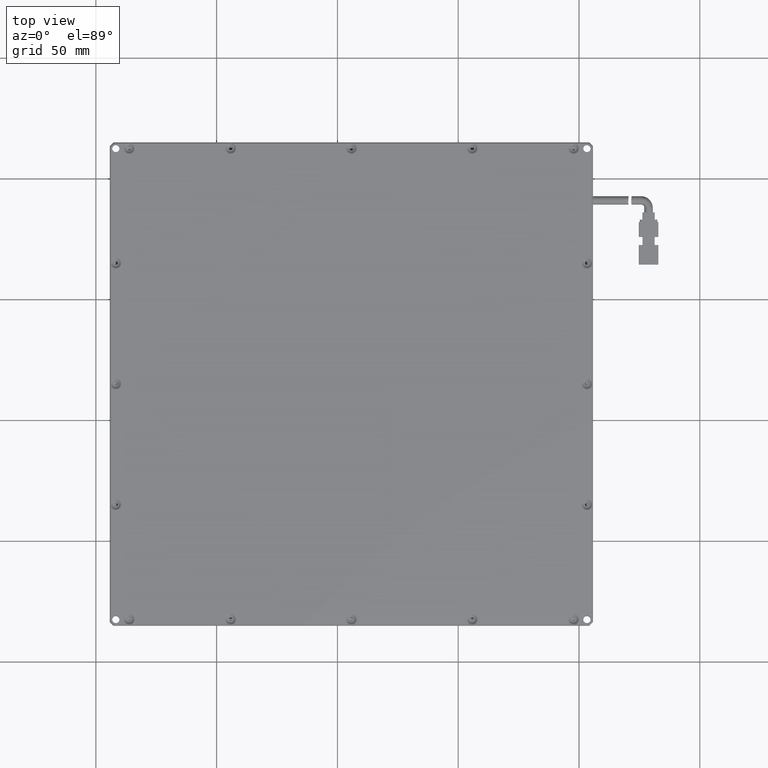
[diagram: clean part render]
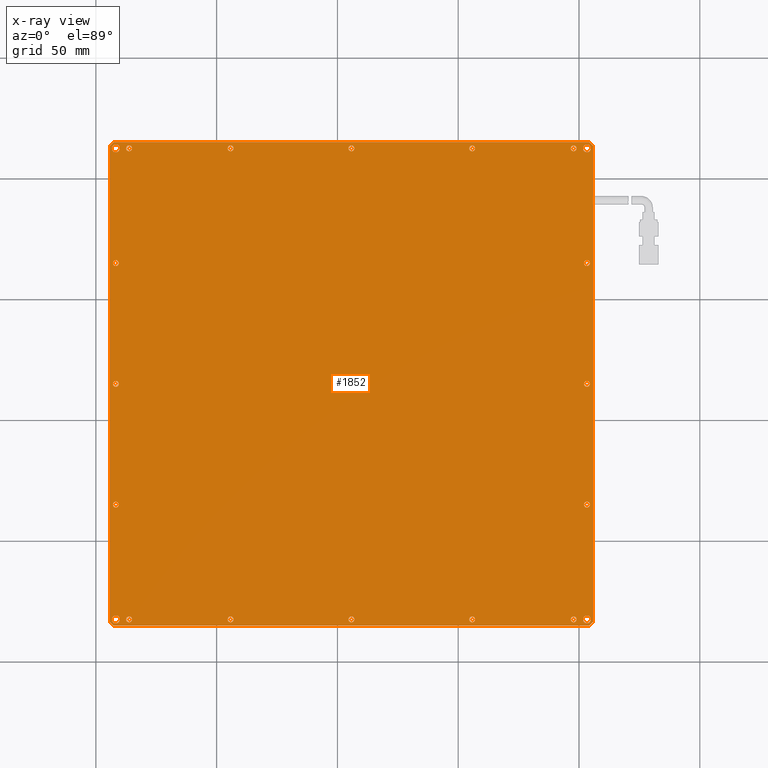
[diagram: x-ray — body ghosted, one internal face saturated and labeled with its STEP entity id]
A machine part, top view, then the same camera in x-ray: the body is ghosted and one INTERNAL B-rep face — a face not visible from any outside direction — is saturated and labeled: STEP entity #1852.
In plain terms, the highlighted planar face has unit normal (0, 0, -1).
Its self-contained STEP definition (entity closure, byte-faithful):
#141 = EDGE_CURVE ( 'NONE', #25293, #31056, #6409, .T. ) ;
#173 = VERTEX_POINT ( 'NONE', #12850 ) ;
#178 = FACE_OUTER_BOUND ( 'NONE', #16864, .T. ) ;
#204 = CARTESIAN_POINT ( 'NONE',  ( 53.28104460093896200, 14.95082159624412700, 4.499999999999999100 ) ) ;
#214 = CARTESIAN_POINT ( 'NONE',  ( 55.78104460093896900, -83.54917840375581800, 4.499999999999999100 ) ) ;
#287 = EDGE_LOOP ( 'NONE', ( #20049, #13171 ) ) ;
#315 = VERTEX_POINT ( 'NONE', #29815 ) ;
#357 = ORIENTED_EDGE ( 'NONE', *, *, #9085, .T. ) ;
#389 = DIRECTION ( 'NONE',  ( 1.000000000000000000, 0.0000000000000000000, 0.0000000000000000000 ) ) ;
#477 = VERTEX_POINT ( 'NONE', #25427 ) ;
#492 = AXIS2_PLACEMENT_3D ( 'NONE', #22128, #7352, #24605 ) ;
#576 = EDGE_CURVE ( 'NONE', #24073, #30542, #11399, .T. ) ;
#827 = DIRECTION ( 'NONE',  ( -0.0000000000000000000, -0.0000000000000000000, 1.000000000000000000 ) ) ;
#840 = EDGE_CURVE ( 'NONE', #16230, #16880, #1385, .T. ) ;
#909 = AXIS2_PLACEMENT_3D ( 'NONE', #21521, #6723, #23988 ) ;
#934 = EDGE_CURVE ( 'NONE', #16496, #11322, #996, .T. ) ;
#938 = EDGE_LOOP ( 'NONE', ( #28427, #23035 ) ) ;
#960 = FACE_BOUND ( 'NONE', #27112, .T. ) ;
#996 = CIRCLE ( 'NONE', #3240, 1.200000000000006600 ) ;
#1045 = CIRCLE ( 'NONE', #23787, 1.200000000000006600 ) ;
#1047 = EDGE_CURVE ( 'NONE', #4254, #17676, #2510, .T. ) ;
#1150 = AXIS2_PLACEMENT_3D ( 'NONE', #10073, #27298, #12517 ) ;
#1156 = DIRECTION ( 'NONE',  ( 1.000000000000000000, 0.0000000000000000000, 0.0000000000000000000 ) ) ;
#1251 = ORIENTED_EDGE ( 'NONE', *, *, #141, .T. ) ;
#1320 = CARTESIAN_POINT ( 'NONE',  ( -144.2189553990610300, -83.54917840375587400, 4.499999999999998200 ) ) ;
#1385 = LINE ( 'NONE', #27368, #12949 ) ;
#1394 = DIRECTION ( 'NONE',  ( -0.0000000000000000000, -0.0000000000000000000, 1.000000000000000000 ) ) ;
#1513 = DIRECTION ( 'NONE',  ( 1.000000000000000000, 0.0000000000000000000, 0.0000000000000000000 ) ) ;
#1562 = CARTESIAN_POINT ( 'NONE',  ( 5.781044600938978200, 112.4508215962441300, 4.499999999999999100 ) ) ;
#1595 = DIRECTION ( 'NONE',  ( 0.0000000000000000000, 1.000000000000000000, 0.0000000000000000000 ) ) ;
#1635 = DIRECTION ( 'NONE',  ( 1.000000000000000000, 0.0000000000000000000, 0.0000000000000000000 ) ) ;
#1639 = AXIS2_PLACEMENT_3D ( 'NONE', #17246, #2468, #19737 ) ;
#1719 = CARTESIAN_POINT ( 'NONE',  ( -93.01895539906101400, -82.54917840375587400, 4.499999999999999100 ) ) ;
#1720 = FACE_BOUND ( 'NONE', #20125, .T. ) ;
#1834 = DIRECTION ( 'NONE',  ( 1.000000000000000000, 0.0000000000000000000, 0.0000000000000000000 ) ) ;
#1841 = ORIENTED_EDGE ( 'NONE', *, *, #11326, .T. ) ;
#1852 = ADVANCED_FACE ( 'NONE', ( #15622, #28714, #22149, #9026, #2497, #27924, #21366, #14835, #8265, #1720, #27178, #20632, #14054, #7482, #960, #26378, #19866, #13282, #6679, #178, #25590 ), #17147, .T. ) ;
#1920 = DIRECTION ( 'NONE',  ( 1.000000000000000000, 0.0000000000000000000, 0.0000000000000000000 ) ) ;
#2129 = CARTESIAN_POINT ( 'NONE',  ( 4.581044600938971800, 112.4508215962441300, 4.499999999999999100 ) ) ;
#2216 = CARTESIAN_POINT ( 'NONE',  ( 48.98104460093896500, -82.54917840375587400, 4.499999999999999100 ) ) ;
#2219 = CARTESIAN_POINT ( 'NONE',  ( -140.0689553990610500, 112.4508215962441300, 4.499999999999999100 ) ) ;
#2299 = AXIS2_PLACEMENT_3D ( 'NONE', #10508, #27731, #12972 ) ;
#2335 = CIRCLE ( 'NONE', #909, 1.199999999999978900 ) ;
#2371 = CARTESIAN_POINT ( 'NONE',  ( 47.78104460093896200, -82.54917840375587400, 4.499999999999999100 ) ) ;
#2393 = CARTESIAN_POINT ( 'NONE',  ( -136.2189553990610300, -82.54917840375587400, 4.499999999999999100 ) ) ;
#2414 = AXIS2_PLACEMENT_3D ( 'NONE', #27165, #12365, #29667 ) ;
#2468 = DIRECTION ( 'NONE',  ( 0.0000000000000000000, 0.0000000000000000000, -1.000000000000000000 ) ) ;
#2469 = EDGE_LOOP ( 'NONE', ( #9784, #23932 ) ) ;
#2497 = FACE_BOUND ( 'NONE', #9227, .T. ) ;
#2510 = CIRCLE ( 'NONE', #12520, 1.200000000000006600 ) ;
#2525 = AXIS2_PLACEMENT_3D ( 'NONE', #14606, #31882, #17114 ) ;
#2581 = CARTESIAN_POINT ( 'NONE',  ( 53.28104460093896200, 14.95082159624412700, 4.499999999999999100 ) ) ;
#2667 = DIRECTION ( 'NONE',  ( 1.000000000000000000, 0.0000000000000000000, 0.0000000000000000000 ) ) ;
#2694 = AXIS2_PLACEMENT_3D ( 'NONE', #8904, #26148, #11368 ) ;
#2716 = CIRCLE ( 'NONE', #13802, 1.200000000000006600 ) ;
#2793 = ORIENTED_EDGE ( 'NONE', *, *, #28502, .T. ) ;
#2806 = AXIS2_PLACEMENT_3D ( 'NONE', #9263, #26505, #11730 ) ;
#2976 = ORIENTED_EDGE ( 'NONE', *, *, #16670, .T. ) ;
#2978 = CIRCLE ( 'NONE', #30604, 1.200000000000006600 ) ;
#3100 = AXIS2_PLACEMENT_3D ( 'NONE', #21688, #6901, #24164 ) ;
#3240 = AXIS2_PLACEMENT_3D ( 'NONE', #27272, #12493, #29783 ) ;
#3282 = AXIS2_PLACEMENT_3D ( 'NONE', #15590, #827, #18065 ) ;
#3347 = CARTESIAN_POINT ( 'NONE',  ( -141.7189553990610300, 14.95082159624412700, 4.499999999999999100 ) ) ;
#3372 = AXIS2_PLACEMENT_3D ( 'NONE', #28015, #13270, #30562 ) ;
#3390 = EDGE_CURVE ( 'NONE', #23383, #26429, #16346, .T. ) ;
#3705 = AXIS2_PLACEMENT_3D ( 'NONE', #31384, #16614, #1834 ) ;
#3855 = CARTESIAN_POINT ( 'NONE',  ( 5.781044600938978200, -82.54917840375587400, 4.499999999999999100 ) ) ;
#3923 = EDGE_CURVE ( 'NONE', #23568, #30537, #11375, .T. ) ;
#3957 = CIRCLE ( 'NONE', #3372, 1.199999999999978900 ) ;
#4051 = DIRECTION ( 'NONE',  ( 1.000000000000000000, 0.0000000000000000000, 0.0000000000000000000 ) ) ;
#4152 = CARTESIAN_POINT ( 'NONE',  ( -137.4189553990610500, -82.54917840375587400, 4.499999999999999100 ) ) ;
#4253 = CARTESIAN_POINT ( 'NONE',  ( 52.08104460093895900, 14.95082159624412700, 4.499999999999999100 ) ) ;
#4254 = VERTEX_POINT ( 'NONE', #17498 ) ;
#4285 = ORIENTED_EDGE ( 'NONE', *, *, #23219, .T. ) ;
#4331 = ORIENTED_EDGE ( 'NONE', *, *, #21129, .T. ) ;
#4572 = EDGE_LOOP ( 'NONE', ( #21194, #7036 ) ) ;
#4801 = LINE ( 'NONE', #23755, #5573 ) ;
#4828 = DIRECTION ( 'NONE',  ( 1.000000000000000000, 0.0000000000000000000, 0.0000000000000000000 ) ) ;
#4849 = DIRECTION ( 'NONE',  ( 1.000000000000000000, 0.0000000000000000000, 0.0000000000000000000 ) ) ;
#4980 = EDGE_CURVE ( 'NONE', #31342, #23534, #10493, .T. ) ;
#5049 = DIRECTION ( 'NONE',  ( 1.000000000000000000, 0.0000000000000000000, 0.0000000000000000000 ) ) ;
#5054 = VERTEX_POINT ( 'NONE', #15004 ) ;
#5092 = CARTESIAN_POINT ( 'NONE',  ( -141.7189553990610300, 14.95082159624412700, 4.499999999999999100 ) ) ;
#5239 = CARTESIAN_POINT ( 'NONE',  ( 53.28104460093896200, -82.54917840375587400, 4.499999999999999100 ) ) ;
#5255 = DIRECTION ( 'NONE',  ( -0.0000000000000000000, -1.000000000000000000, -0.0000000000000000000 ) ) ;
#5293 = CIRCLE ( 'NONE', #31954, 1.199999999999992600 ) ;
#5311 = CARTESIAN_POINT ( 'NONE',  ( -94.21895539906103100, 112.4508215962441300, 4.499999999999999100 ) ) ;
#5340 = EDGE_CURVE ( 'NONE', #10936, #9612, #23192, .T. ) ;
#5501 = CARTESIAN_POINT ( 'NONE',  ( 53.28104460093896200, -82.54917840375587400, 4.499999999999999100 ) ) ;
#5573 = VECTOR ( 'NONE', #16447, 1000.000000000000000 ) ;
#5622 = LINE ( 'NONE', #214, #29587 ) ;
#5683 = ORIENTED_EDGE ( 'NONE', *, *, #31746, .T. ) ;
#5716 = EDGE_LOOP ( 'NONE', ( #14203, #31065 ) ) ;
#5734 = DIRECTION ( 'NONE',  ( -0.0000000000000000000, -0.0000000000000000000, 1.000000000000000000 ) ) ;
#5792 = DIRECTION ( 'NONE',  ( 0.7071067811865474600, 0.7071067811865474600, 0.0000000000000000000 ) ) ;
#5796 = DIRECTION ( 'NONE',  ( 1.000000000000000000, 0.0000000000000000000, 0.0000000000000000000 ) ) ;
#5924 = CARTESIAN_POINT ( 'NONE',  ( -142.7189553990610300, -85.04917840375587400, 4.499999999999999100 ) ) ;
#5953 = VERTEX_POINT ( 'NONE', #2219 ) ;
#6001 = CARTESIAN_POINT ( 'NONE',  ( 51.63104460093897800, 112.4508215962441300, 4.499999999999999100 ) ) ;
#6020 = EDGE_LOOP ( 'NONE', ( #7828, #25206 ) ) ;
#6087 = DIRECTION ( 'NONE',  ( -0.0000000000000000000, -0.0000000000000000000, 1.000000000000000000 ) ) ;
#6121 = EDGE_LOOP ( 'NONE', ( #17235, #8554 ) ) ;
#6292 = DIRECTION ( 'NONE',  ( 1.000000000000000000, 0.0000000000000000000, 0.0000000000000000000 ) ) ;
#6318 = CIRCLE ( 'NONE', #6476, 1.649999999999984800 ) ;
#6341 = VERTEX_POINT ( 'NONE', #28628 ) ;
#6409 = CIRCLE ( 'NONE', #21772, 1.649999999999984800 ) ;
#6433 = EDGE_LOOP ( 'NONE', ( #357, #27429 ) ) ;
#6476 = AXIS2_PLACEMENT_3D ( 'NONE', #13806, #31084, #16280 ) ;
#6640 = EDGE_LOOP ( 'NONE', ( #1251, #4285 ) ) ;
#6679 = FACE_BOUND ( 'NONE', #4572, .T. ) ;
#6723 = DIRECTION ( 'NONE',  ( -0.0000000000000000000, -0.0000000000000000000, 1.000000000000000000 ) ) ;
#6780 = DIRECTION ( 'NONE',  ( 1.000000000000000000, 0.0000000000000000000, 0.0000000000000000000 ) ) ;
#6889 = DIRECTION ( 'NONE',  ( -0.0000000000000000000, -0.0000000000000000000, 1.000000000000000000 ) ) ;
#6901 = DIRECTION ( 'NONE',  ( -0.0000000000000000000, -0.0000000000000000000, 1.000000000000000000 ) ) ;
#6993 = AXIS2_PLACEMENT_3D ( 'NONE', #3855, #21075, #6292 ) ;
#7004 = CARTESIAN_POINT ( 'NONE',  ( -45.41895539906103400, -82.54917840375587400, 4.499999999999999100 ) ) ;
#7036 = ORIENTED_EDGE ( 'NONE', *, *, #9382, .T. ) ;
#7199 = VERTEX_POINT ( 'NONE', #30257 ) ;
#7326 = ORIENTED_EDGE ( 'NONE', *, *, #30768, .T. ) ;
#7342 = VERTEX_POINT ( 'NONE', #1320 ) ;
#7352 = DIRECTION ( 'NONE',  ( -0.0000000000000000000, -0.0000000000000000000, 1.000000000000000000 ) ) ;
#7434 = EDGE_CURVE ( 'NONE', #9612, #10936, #23624, .T. ) ;
#7445 = ORIENTED_EDGE ( 'NONE', *, *, #8807, .T. ) ;
#7482 = FACE_BOUND ( 'NONE', #15031, .T. ) ;
#7559 = DIRECTION ( 'NONE',  ( 1.000000000000000000, 0.0000000000000000000, 0.0000000000000000000 ) ) ;
#7685 = CARTESIAN_POINT ( 'NONE',  ( 47.78104460093896200, 112.4508215962441300, 4.499999999999999100 ) ) ;
#7715 = ORIENTED_EDGE ( 'NONE', *, *, #5340, .T. ) ;
#7717 = DIRECTION ( 'NONE',  ( 1.000000000000000000, 0.0000000000000000000, 0.0000000000000000000 ) ) ;
#7783 = DIRECTION ( 'NONE',  ( 1.000000000000000000, 0.0000000000000000000, 0.0000000000000000000 ) ) ;
#7828 = ORIENTED_EDGE ( 'NONE', *, *, #20784, .T. ) ;
#8199 = EDGE_CURVE ( 'NONE', #11008, #14825, #11569, .T. ) ;
#8265 = FACE_BOUND ( 'NONE', #21775, .T. ) ;
#8303 = ORIENTED_EDGE ( 'NONE', *, *, #25679, .T. ) ;
#8554 = ORIENTED_EDGE ( 'NONE', *, *, #934, .T. ) ;
#8728 = ORIENTED_EDGE ( 'NONE', *, *, #9673, .T. ) ;
#8807 = EDGE_CURVE ( 'NONE', #18213, #11008, #31213, .T. ) ;
#8830 = CARTESIAN_POINT ( 'NONE',  ( 46.58104460093895200, -82.54917840375587400, 4.499999999999999100 ) ) ;
#8904 = CARTESIAN_POINT ( 'NONE',  ( 53.28104460093896200, 112.4508215962441300, 4.499999999999999100 ) ) ;
#8957 = AXIS2_PLACEMENT_3D ( 'NONE', #5239, #22501, #7717 ) ;
#9026 = FACE_BOUND ( 'NONE', #12488, .T. ) ;
#9085 = EDGE_CURVE ( 'NONE', #24203, #19510, #28046, .T. ) ;
#9227 = EDGE_LOOP ( 'NONE', ( #8728, #5683 ) ) ;
#9263 = CARTESIAN_POINT ( 'NONE',  ( -44.21895539906103800, -82.54917840375587400, 4.499999999999999100 ) ) ;
#9335 = DIRECTION ( 'NONE',  ( -0.0000000000000000000, -0.0000000000000000000, 1.000000000000000000 ) ) ;
#9382 = EDGE_CURVE ( 'NONE', #23534, #31342, #1045, .T. ) ;
#9420 = ORIENTED_EDGE ( 'NONE', *, *, #576, .T. ) ;
#9445 = DIRECTION ( 'NONE',  ( -0.0000000000000000000, -0.0000000000000000000, 1.000000000000000000 ) ) ;
#9612 = VERTEX_POINT ( 'NONE', #14380 ) ;
#9649 = CIRCLE ( 'NONE', #3282, 1.200000000000006600 ) ;
#9673 = EDGE_CURVE ( 'NONE', #25452, #19189, #25882, .T. ) ;
#9784 = ORIENTED_EDGE ( 'NONE', *, *, #23409, .T. ) ;
#9905 = AXIS2_PLACEMENT_3D ( 'NONE', #24079, #9335, #26571 ) ;
#9975 = CIRCLE ( 'NONE', #16794, 1.200000000000006600 ) ;
#10073 = CARTESIAN_POINT ( 'NONE',  ( -141.7189553990610300, -82.54917840375587400, 4.499999999999999100 ) ) ;
#10132 = EDGE_LOOP ( 'NONE', ( #24323, #31433 ) ) ;
#10142 = DIRECTION ( 'NONE',  ( -0.7071067811865344700, -0.7071067811865606700, 0.0000000000000000000 ) ) ;
#10205 = DIRECTION ( 'NONE',  ( 1.000000000000000000, 0.0000000000000000000, 0.0000000000000000000 ) ) ;
#10493 = CIRCLE ( 'NONE', #13824, 1.200000000000006600 ) ;
#10508 = CARTESIAN_POINT ( 'NONE',  ( -94.21895539906103100, -82.54917840375587400, 4.499999999999999100 ) ) ;
#10652 = CARTESIAN_POINT ( 'NONE',  ( -144.2189553990610600, 113.4508215962441300, 4.499999999999999100 ) ) ;
#10917 = CARTESIAN_POINT ( 'NONE',  ( -141.7189553990610300, 112.4508215962441300, 4.499999999999999100 ) ) ;
#10936 = VERTEX_POINT ( 'NONE', #26104 ) ;
#11008 = VERTEX_POINT ( 'NONE', #26320 ) ;
#11322 = VERTEX_POINT ( 'NONE', #26236 ) ;
#11326 = EDGE_CURVE ( 'NONE', #30172, #22807, #4801, .T. ) ;
#11368 = DIRECTION ( 'NONE',  ( 1.000000000000000000, 0.0000000000000000000, 0.0000000000000000000 ) ) ;
#11375 = CIRCLE ( 'NONE', #14824, 1.200000000000006600 ) ;
#11399 = CIRCLE ( 'NONE', #2806, 1.199999999999992600 ) ;
#11529 = ORIENTED_EDGE ( 'NONE', *, *, #840, .T. ) ;
#11569 = LINE ( 'NONE', #12338, #30553 ) ;
#11692 = CARTESIAN_POINT ( 'NONE',  ( 55.78104460093896900, 113.4508215962441500, 4.499999999999998200 ) ) ;
#11730 = DIRECTION ( 'NONE',  ( 1.000000000000000000, 0.0000000000000000000, 0.0000000000000000000 ) ) ;
#11764 = VECTOR ( 'NONE', #31573, 1000.000000000000000 ) ;
#12001 = CARTESIAN_POINT ( 'NONE',  ( -137.4189553990610500, 112.4508215962441300, 4.499999999999999100 ) ) ;
#12047 = DIRECTION ( 'NONE',  ( -0.0000000000000000000, -0.0000000000000000000, 1.000000000000000000 ) ) ;
#12122 = DIRECTION ( 'NONE',  ( -0.0000000000000000000, -0.0000000000000000000, 1.000000000000000000 ) ) ;
#12327 = CARTESIAN_POINT ( 'NONE',  ( -135.0189553990610400, -82.54917840375587400, 4.499999999999999100 ) ) ;
#12338 = CARTESIAN_POINT ( 'NONE',  ( -144.2189553990610300, 114.9508215962441300, 4.499999999999999100 ) ) ;
#12365 = DIRECTION ( 'NONE',  ( -0.0000000000000000000, -0.0000000000000000000, 1.000000000000000000 ) ) ;
#12383 = VERTEX_POINT ( 'NONE', #26884 ) ;
#12430 = CIRCLE ( 'NONE', #2414, 1.199999999999992600 ) ;
#12488 = EDGE_LOOP ( 'NONE', ( #19886, #2793 ) ) ;
#12493 = DIRECTION ( 'NONE',  ( -0.0000000000000000000, -0.0000000000000000000, 1.000000000000000000 ) ) ;
#12517 = DIRECTION ( 'NONE',  ( 1.000000000000000000, 0.0000000000000000000, 0.0000000000000000000 ) ) ;
#12520 = AXIS2_PLACEMENT_3D ( 'NONE', #3347, #20600, #5796 ) ;
#12802 = VERTEX_POINT ( 'NONE', #18898 ) ;
#12848 = AXIS2_PLACEMENT_3D ( 'NONE', #204, #17452, #2667 ) ;
#12850 = CARTESIAN_POINT ( 'NONE',  ( 6.981044600938984600, 112.4508215962441300, 4.499999999999999100 ) ) ;
#12949 = VECTOR ( 'NONE', #5255, 1000.000000000000000 ) ;
#12972 = DIRECTION ( 'NONE',  ( 1.000000000000000000, 0.0000000000000000000, 0.0000000000000000000 ) ) ;
#13171 = ORIENTED_EDGE ( 'NONE', *, *, #31208, .T. ) ;
#13238 = CARTESIAN_POINT ( 'NONE',  ( -142.7189553990610300, -85.04917840375587400, 4.499999999999999100 ) ) ;
#13270 = DIRECTION ( 'NONE',  ( -0.0000000000000000000, -0.0000000000000000000, 1.000000000000000000 ) ) ;
#13282 = FACE_BOUND ( 'NONE', #24292, .T. ) ;
#13303 = EDGE_CURVE ( 'NONE', #7342, #18213, #18563, .T. ) ;
#13378 = EDGE_CURVE ( 'NONE', #477, #5054, #2335, .T. ) ;
#13401 = DIRECTION ( 'NONE',  ( 1.000000000000000000, 0.0000000000000000000, 0.0000000000000000000 ) ) ;
#13468 = VERTEX_POINT ( 'NONE', #2129 ) ;
#13625 = CIRCLE ( 'NONE', #2525, 1.199999999999992600 ) ;
#13749 = CIRCLE ( 'NONE', #2694, 1.649999999999984800 ) ;
#13802 = AXIS2_PLACEMENT_3D ( 'NONE', #29951, #15155, #389 ) ;
#13806 = CARTESIAN_POINT ( 'NONE',  ( -141.7189553990610300, -82.54917840375587400, 4.499999999999999100 ) ) ;
#13824 = AXIS2_PLACEMENT_3D ( 'NONE', #2393, #19672, #4849 ) ;
#13893 = CARTESIAN_POINT ( 'NONE',  ( -144.2189553990610300, 114.9508215962441300, 4.499999999999999100 ) ) ;
#14033 = DIRECTION ( 'NONE',  ( -0.0000000000000000000, -0.0000000000000000000, 1.000000000000000000 ) ) ;
#14039 = EDGE_CURVE ( 'NONE', #12802, #19770, #17322, .T. ) ;
#14054 = FACE_BOUND ( 'NONE', #2469, .T. ) ;
#14203 = ORIENTED_EDGE ( 'NONE', *, *, #30297, .T. ) ;
#14336 = EDGE_CURVE ( 'NONE', #22938, #315, #5293, .T. ) ;
#14380 = CARTESIAN_POINT ( 'NONE',  ( 4.581044600938971800, -82.54917840375587400, 4.499999999999999100 ) ) ;
#14590 = AXIS2_PLACEMENT_3D ( 'NONE', #26829, #12047, #29333 ) ;
#14606 = CARTESIAN_POINT ( 'NONE',  ( -44.21895539906103800, 112.4508215962441300, 4.499999999999999100 ) ) ;
#14671 = EDGE_CURVE ( 'NONE', #16880, #30172, #5622, .T. ) ;
#14749 = CARTESIAN_POINT ( 'NONE',  ( -93.01895539906101400, 112.4508215962441300, 4.499999999999999100 ) ) ;
#14794 = CIRCLE ( 'NONE', #18098, 1.200000000000006600 ) ;
#14824 = AXIS2_PLACEMENT_3D ( 'NONE', #31487, #16716, #1920 ) ;
#14825 = VERTEX_POINT ( 'NONE', #15732 ) ;
#14835 = FACE_BOUND ( 'NONE', #18650, .T. ) ;
#14875 = CARTESIAN_POINT ( 'NONE',  ( -140.5189553990610400, 64.95082159624411100, 4.499999999999999100 ) ) ;
#14882 = VERTEX_POINT ( 'NONE', #6001 ) ;
#15004 = CARTESIAN_POINT ( 'NONE',  ( 52.08104460093898800, 64.95082159624411100, 4.499999999999999100 ) ) ;
#15031 = EDGE_LOOP ( 'NONE', ( #16002, #23049 ) ) ;
#15149 = EDGE_CURVE ( 'NONE', #30537, #23568, #14794, .T. ) ;
#15155 = DIRECTION ( 'NONE',  ( -0.0000000000000000000, -0.0000000000000000000, 1.000000000000000000 ) ) ;
#15289 = CARTESIAN_POINT ( 'NONE',  ( -142.9189553990610500, 64.95082159624411100, 4.499999999999999100 ) ) ;
#15325 = CIRCLE ( 'NONE', #24215, 1.200000000000006600 ) ;
#15401 = CARTESIAN_POINT ( 'NONE',  ( -95.41895539906103400, -82.54917840375587400, 4.499999999999999100 ) ) ;
#15421 = VERTEX_POINT ( 'NONE', #18210 ) ;
#15590 = CARTESIAN_POINT ( 'NONE',  ( 47.78104460093896200, 112.4508215962441300, 4.499999999999999100 ) ) ;
#15622 = FACE_BOUND ( 'NONE', #10132, .T. ) ;
#15623 = ORIENTED_EDGE ( 'NONE', *, *, #30708, .T. ) ;
#15690 = CIRCLE ( 'NONE', #8957, 1.649999999999984800 ) ;
#15732 = CARTESIAN_POINT ( 'NONE',  ( 54.28104460093896900, 114.9508215962441300, 4.499999999999999100 ) ) ;
#15777 = EDGE_CURVE ( 'NONE', #6341, #19039, #2716, .T. ) ;
#15893 = EDGE_CURVE ( 'NONE', #12383, #7199, #9649, .T. ) ;
#15928 = DIRECTION ( 'NONE',  ( -0.0000000000000000000, -0.0000000000000000000, 1.000000000000000000 ) ) ;
#16002 = ORIENTED_EDGE ( 'NONE', *, *, #17792, .T. ) ;
#16128 = AXIS2_PLACEMENT_3D ( 'NONE', #5092, #22341, #7559 ) ;
#16180 = CARTESIAN_POINT ( 'NONE',  ( -94.21895539906103100, -82.54917840375587400, 4.499999999999999100 ) ) ;
#16230 = VERTEX_POINT ( 'NONE', #11692 ) ;
#16276 = DIRECTION ( 'NONE',  ( -0.0000000000000000000, -0.0000000000000000000, 1.000000000000000000 ) ) ;
#16280 = DIRECTION ( 'NONE',  ( 1.000000000000000000, 0.0000000000000000000, 0.0000000000000000000 ) ) ;
#16316 = ORIENTED_EDGE ( 'NONE', *, *, #27445, .T. ) ;
#16346 = CIRCLE ( 'NONE', #25503, 1.199999999999978900 ) ;
#16410 = DIRECTION ( 'NONE',  ( -0.0000000000000000000, -0.0000000000000000000, 1.000000000000000000 ) ) ;
#16424 = CIRCLE ( 'NONE', #21559, 1.200000000000006600 ) ;
#16447 = DIRECTION ( 'NONE',  ( -1.000000000000000000, 0.0000000000000000000, -0.0000000000000000000 ) ) ;
#16496 = VERTEX_POINT ( 'NONE', #25375 ) ;
#16507 = CIRCLE ( 'NONE', #22713, 1.200000000000006600 ) ;
#16614 = DIRECTION ( 'NONE',  ( -0.0000000000000000000, -0.0000000000000000000, 1.000000000000000000 ) ) ;
#16670 = EDGE_CURVE ( 'NONE', #173, #13468, #2978, .T. ) ;
#16716 = DIRECTION ( 'NONE',  ( -0.0000000000000000000, -0.0000000000000000000, 1.000000000000000000 ) ) ;
#16794 = AXIS2_PLACEMENT_3D ( 'NONE', #20540, #5734, #22993 ) ;
#16864 = EDGE_LOOP ( 'NONE', ( #11529, #27082, #1841, #8303, #17168, #7445, #28279, #20733 ) ) ;
#16880 = VERTEX_POINT ( 'NONE', #31874 ) ;
#16947 = EDGE_CURVE ( 'NONE', #17676, #4254, #19549, .T. ) ;
#17114 = DIRECTION ( 'NONE',  ( 1.000000000000000000, 0.0000000000000000000, 0.0000000000000000000 ) ) ;
#17147 = PLANE ( 'NONE',  #1639 ) ;
#17168 = ORIENTED_EDGE ( 'NONE', *, *, #13303, .T. ) ;
#17235 = ORIENTED_EDGE ( 'NONE', *, *, #17723, .T. ) ;
#17246 = CARTESIAN_POINT ( 'NONE',  ( -144.2189553990610300, 114.9508215962441300, 4.499999999999999100 ) ) ;
#17322 = CIRCLE ( 'NONE', #1150, 1.649999999999984800 ) ;
#17347 = CIRCLE ( 'NONE', #21080, 1.200000000000006600 ) ;
#17452 = DIRECTION ( 'NONE',  ( -0.0000000000000000000, -0.0000000000000000000, 1.000000000000000000 ) ) ;
#17498 = CARTESIAN_POINT ( 'NONE',  ( -140.5189553990610400, 14.95082159624412700, 4.499999999999999100 ) ) ;
#17676 = VERTEX_POINT ( 'NONE', #23871 ) ;
#17723 = EDGE_CURVE ( 'NONE', #11322, #16496, #23278, .T. ) ;
#17792 = EDGE_CURVE ( 'NONE', #315, #22938, #13625, .T. ) ;
#17876 = CIRCLE ( 'NONE', #14590, 1.649999999999984800 ) ;
#17999 = EDGE_CURVE ( 'NONE', #13468, #173, #9975, .T. ) ;
#18065 = DIRECTION ( 'NONE',  ( 1.000000000000000000, 0.0000000000000000000, 0.0000000000000000000 ) ) ;
#18086 = EDGE_CURVE ( 'NONE', #5953, #15421, #29661, .T. ) ;
#18098 = AXIS2_PLACEMENT_3D ( 'NONE', #2371, #19646, #4828 ) ;
#18210 = CARTESIAN_POINT ( 'NONE',  ( -143.3689553990610400, 112.4508215962441300, 4.499999999999999100 ) ) ;
#18213 = VERTEX_POINT ( 'NONE', #18908 ) ;
#18563 = LINE ( 'NONE', #13893, #24312 ) ;
#18650 = EDGE_LOOP ( 'NONE', ( #2976, #22911 ) ) ;
#18676 = DIRECTION ( 'NONE',  ( 1.000000000000000000, 0.0000000000000000000, 0.0000000000000000000 ) ) ;
#18782 = EDGE_CURVE ( 'NONE', #20340, #22994, #15325, .T. ) ;
#18828 = DIRECTION ( 'NONE',  ( -0.0000000000000000000, -0.0000000000000000000, 1.000000000000000000 ) ) ;
#18898 = CARTESIAN_POINT ( 'NONE',  ( -143.3689553990610400, -82.54917840375587400, 4.499999999999999100 ) ) ;
#18908 = CARTESIAN_POINT ( 'NONE',  ( -144.2189553990610300, 113.4508215962441300, 4.499999999999999100 ) ) ;
#19027 = ORIENTED_EDGE ( 'NONE', *, *, #16947, .T. ) ;
#19039 = VERTEX_POINT ( 'NONE', #14749 ) ;
#19189 = VERTEX_POINT ( 'NONE', #15289 ) ;
#19510 = VERTEX_POINT ( 'NONE', #4253 ) ;
#19549 = CIRCLE ( 'NONE', #16128, 1.200000000000006600 ) ;
#19646 = DIRECTION ( 'NONE',  ( -0.0000000000000000000, -0.0000000000000000000, 1.000000000000000000 ) ) ;
#19672 = DIRECTION ( 'NONE',  ( -0.0000000000000000000, -0.0000000000000000000, 1.000000000000000000 ) ) ;
#19737 = DIRECTION ( 'NONE',  ( -1.000000000000000000, 0.0000000000000000000, -0.0000000000000000000 ) ) ;
#19770 = VERTEX_POINT ( 'NONE', #28058 ) ;
#19818 = ORIENTED_EDGE ( 'NONE', *, *, #7434, .T. ) ;
#19856 = DIRECTION ( 'NONE',  ( -0.0000000000000000000, -0.0000000000000000000, 1.000000000000000000 ) ) ;
#19866 = FACE_BOUND ( 'NONE', #938, .T. ) ;
#19886 = ORIENTED_EDGE ( 'NONE', *, *, #3390, .T. ) ;
#19891 = AXIS2_PLACEMENT_3D ( 'NONE', #28801, #14033, #31300 ) ;
#19987 = CARTESIAN_POINT ( 'NONE',  ( -135.0189553990610400, 112.4508215962441300, 4.499999999999999100 ) ) ;
#20049 = ORIENTED_EDGE ( 'NONE', *, *, #13378, .T. ) ;
#20107 = CIRCLE ( 'NONE', #9905, 1.199999999999978900 ) ;
#20125 = EDGE_LOOP ( 'NONE', ( #4331, #16316 ) ) ;
#20160 = VERTEX_POINT ( 'NONE', #19987 ) ;
#20340 = VERTEX_POINT ( 'NONE', #15401 ) ;
#20378 = AXIS2_PLACEMENT_3D ( 'NONE', #7685, #24921, #10205 ) ;
#20540 = CARTESIAN_POINT ( 'NONE',  ( 5.781044600938978200, 112.4508215962441300, 4.499999999999999100 ) ) ;
#20600 = DIRECTION ( 'NONE',  ( -0.0000000000000000000, -0.0000000000000000000, 1.000000000000000000 ) ) ;
#20632 = FACE_BOUND ( 'NONE', #5716, .T. ) ;
#20719 = CARTESIAN_POINT ( 'NONE',  ( 54.28104460093896900, -85.04917840375587400, 4.499999999999999100 ) ) ;
#20729 = ORIENTED_EDGE ( 'NONE', *, *, #23646, .T. ) ;
#20733 = ORIENTED_EDGE ( 'NONE', *, *, #27549, .T. ) ;
#20784 = EDGE_CURVE ( 'NONE', #19039, #6341, #17347, .T. ) ;
#20870 = EDGE_CURVE ( 'NONE', #22994, #20340, #27348, .T. ) ;
#20880 = CARTESIAN_POINT ( 'NONE',  ( -136.2189553990610300, -82.54917840375587400, 4.499999999999999100 ) ) ;
#20900 = CARTESIAN_POINT ( 'NONE',  ( 51.63104460093897800, -82.54917840375587400, 4.499999999999999100 ) ) ;
#21075 = DIRECTION ( 'NONE',  ( -0.0000000000000000000, -0.0000000000000000000, 1.000000000000000000 ) ) ;
#21080 = AXIS2_PLACEMENT_3D ( 'NONE', #5311, #22577, #7783 ) ;
#21107 = CARTESIAN_POINT ( 'NONE',  ( -45.41895539906103400, 112.4508215962441300, 4.499999999999999100 ) ) ;
#21129 = EDGE_CURVE ( 'NONE', #21898, #14882, #24778, .T. ) ;
#21194 = ORIENTED_EDGE ( 'NONE', *, *, #4980, .T. ) ;
#21282 = AXIS2_PLACEMENT_3D ( 'NONE', #24184, #9445, #26675 ) ;
#21366 = FACE_BOUND ( 'NONE', #6020, .T. ) ;
#21514 = EDGE_LOOP ( 'NONE', ( #26310, #19027 ) ) ;
#21516 = ORIENTED_EDGE ( 'NONE', *, *, #15893, .T. ) ;
#21521 = CARTESIAN_POINT ( 'NONE',  ( 53.28104460093896200, 64.95082159624411100, 4.499999999999999100 ) ) ;
#21559 = AXIS2_PLACEMENT_3D ( 'NONE', #30709, #15928, #1156 ) ;
#21688 = CARTESIAN_POINT ( 'NONE',  ( -141.7189553990610300, 64.95082159624411100, 4.499999999999999100 ) ) ;
#21772 = AXIS2_PLACEMENT_3D ( 'NONE', #5501, #6889, #6780 ) ;
#21775 = EDGE_LOOP ( 'NONE', ( #31217, #15623 ) ) ;
#21898 = VERTEX_POINT ( 'NONE', #22517 ) ;
#22017 = CARTESIAN_POINT ( 'NONE',  ( 54.93104460093894700, -82.54917840375587400, 4.499999999999999100 ) ) ;
#22128 = CARTESIAN_POINT ( 'NONE',  ( -141.7189553990610300, 64.95082159624411100, 4.499999999999999100 ) ) ;
#22149 = FACE_BOUND ( 'NONE', #287, .T. ) ;
#22208 = CARTESIAN_POINT ( 'NONE',  ( 54.48104460093897200, 14.95082159624412700, 4.499999999999999100 ) ) ;
#22341 = DIRECTION ( 'NONE',  ( -0.0000000000000000000, -0.0000000000000000000, 1.000000000000000000 ) ) ;
#22375 = CIRCLE ( 'NONE', #3705, 1.200000000000006600 ) ;
#22501 = DIRECTION ( 'NONE',  ( -0.0000000000000000000, -0.0000000000000000000, 1.000000000000000000 ) ) ;
#22517 = CARTESIAN_POINT ( 'NONE',  ( 54.93104460093894700, 112.4508215962441300, 4.499999999999999100 ) ) ;
#22577 = DIRECTION ( 'NONE',  ( -0.0000000000000000000, -0.0000000000000000000, 1.000000000000000000 ) ) ;
#22713 = AXIS2_PLACEMENT_3D ( 'NONE', #2581, #19856, #5049 ) ;
#22807 = VERTEX_POINT ( 'NONE', #5924 ) ;
#22911 = ORIENTED_EDGE ( 'NONE', *, *, #17999, .T. ) ;
#22938 = VERTEX_POINT ( 'NONE', #21107 ) ;
#22993 = DIRECTION ( 'NONE',  ( 1.000000000000000000, 0.0000000000000000000, 0.0000000000000000000 ) ) ;
#22994 = VERTEX_POINT ( 'NONE', #1719 ) ;
#23035 = ORIENTED_EDGE ( 'NONE', *, *, #15149, .T. ) ;
#23049 = ORIENTED_EDGE ( 'NONE', *, *, #14336, .T. ) ;
#23104 = LINE ( 'NONE', #13238, #29689 ) ;
#23192 = CIRCLE ( 'NONE', #6993, 1.200000000000006600 ) ;
#23219 = EDGE_CURVE ( 'NONE', #31056, #25293, #15690, .T. ) ;
#23278 = CIRCLE ( 'NONE', #21282, 1.200000000000006600 ) ;
#23355 = DIRECTION ( 'NONE',  ( 1.000000000000000000, 0.0000000000000000000, 0.0000000000000000000 ) ) ;
#23383 = VERTEX_POINT ( 'NONE', #28084 ) ;
#23390 = AXIS2_PLACEMENT_3D ( 'NONE', #10917, #28159, #13401 ) ;
#23409 = EDGE_CURVE ( 'NONE', #20160, #23548, #16424, .T. ) ;
#23534 = VERTEX_POINT ( 'NONE', #4152 ) ;
#23548 = VERTEX_POINT ( 'NONE', #12001 ) ;
#23568 = VERTEX_POINT ( 'NONE', #2216 ) ;
#23624 = CIRCLE ( 'NONE', #28020, 1.200000000000006600 ) ;
#23646 = EDGE_CURVE ( 'NONE', #7199, #12383, #29914, .T. ) ;
#23736 = CARTESIAN_POINT ( 'NONE',  ( 52.08104460093898800, -35.04917840375588900, 4.499999999999999100 ) ) ;
#23755 = CARTESIAN_POINT ( 'NONE',  ( -144.2189553990610300, -85.04917840375587400, 4.499999999999999100 ) ) ;
#23787 = AXIS2_PLACEMENT_3D ( 'NONE', #20880, #6087, #23355 ) ;
#23871 = CARTESIAN_POINT ( 'NONE',  ( -142.9189553990610500, 14.95082159624412700, 4.499999999999999100 ) ) ;
#23932 = ORIENTED_EDGE ( 'NONE', *, *, #25310, .T. ) ;
#23988 = DIRECTION ( 'NONE',  ( 1.000000000000000000, 0.0000000000000000000, 0.0000000000000000000 ) ) ;
#24073 = VERTEX_POINT ( 'NONE', #7004 ) ;
#24079 = CARTESIAN_POINT ( 'NONE',  ( 53.28104460093896200, 64.95082159624411100, 4.499999999999999100 ) ) ;
#24164 = DIRECTION ( 'NONE',  ( 1.000000000000000000, 0.0000000000000000000, 0.0000000000000000000 ) ) ;
#24184 = CARTESIAN_POINT ( 'NONE',  ( -141.7189553990610300, -35.04917840375588900, 4.499999999999999100 ) ) ;
#24203 = VERTEX_POINT ( 'NONE', #22208 ) ;
#24215 = AXIS2_PLACEMENT_3D ( 'NONE', #16180, #1394, #18676 ) ;
#24292 = EDGE_LOOP ( 'NONE', ( #7326, #9420 ) ) ;
#24312 = VECTOR ( 'NONE', #1595, 1000.000000000000000 ) ;
#24323 = ORIENTED_EDGE ( 'NONE', *, *, #20870, .T. ) ;
#24465 = EDGE_LOOP ( 'NONE', ( #7715, #19818 ) ) ;
#24605 = DIRECTION ( 'NONE',  ( 1.000000000000000000, 0.0000000000000000000, 0.0000000000000000000 ) ) ;
#24614 = VECTOR ( 'NONE', #5792, 1000.000000000000100 ) ;
#24778 = CIRCLE ( 'NONE', #19891, 1.649999999999984800 ) ;
#24921 = DIRECTION ( 'NONE',  ( -0.0000000000000000000, -0.0000000000000000000, 1.000000000000000000 ) ) ;
#25206 = ORIENTED_EDGE ( 'NONE', *, *, #15777, .T. ) ;
#25293 = VERTEX_POINT ( 'NONE', #22017 ) ;
#25310 = EDGE_CURVE ( 'NONE', #23548, #20160, #22375, .T. ) ;
#25375 = CARTESIAN_POINT ( 'NONE',  ( -142.9189553990610500, -35.04917840375588900, 4.499999999999999100 ) ) ;
#25427 = CARTESIAN_POINT ( 'NONE',  ( 54.48104460093894400, 64.95082159624411100, 4.499999999999999100 ) ) ;
#25452 = VERTEX_POINT ( 'NONE', #14875 ) ;
#25503 = AXIS2_PLACEMENT_3D ( 'NONE', #26905, #12122, #29401 ) ;
#25590 = FACE_BOUND ( 'NONE', #21514, .T. ) ;
#25679 = EDGE_CURVE ( 'NONE', #22807, #7342, #23104, .T. ) ;
#25882 = CIRCLE ( 'NONE', #492, 1.200000000000006600 ) ;
#26104 = CARTESIAN_POINT ( 'NONE',  ( 6.981044600938984600, -82.54917840375587400, 4.499999999999999100 ) ) ;
#26148 = DIRECTION ( 'NONE',  ( -0.0000000000000000000, -0.0000000000000000000, 1.000000000000000000 ) ) ;
#26236 = CARTESIAN_POINT ( 'NONE',  ( -140.5189553990610400, -35.04917840375588900, 4.499999999999999100 ) ) ;
#26310 = ORIENTED_EDGE ( 'NONE', *, *, #1047, .T. ) ;
#26320 = CARTESIAN_POINT ( 'NONE',  ( -142.7189553990610600, 114.9508215962441300, 4.499999999999998200 ) ) ;
#26378 = FACE_BOUND ( 'NONE', #6433, .T. ) ;
#26429 = VERTEX_POINT ( 'NONE', #23736 ) ;
#26505 = DIRECTION ( 'NONE',  ( -0.0000000000000000000, -0.0000000000000000000, 1.000000000000000000 ) ) ;
#26571 = DIRECTION ( 'NONE',  ( 1.000000000000000000, 0.0000000000000000000, 0.0000000000000000000 ) ) ;
#26675 = DIRECTION ( 'NONE',  ( 1.000000000000000000, 0.0000000000000000000, 0.0000000000000000000 ) ) ;
#26829 = CARTESIAN_POINT ( 'NONE',  ( -141.7189553990610300, 112.4508215962441300, 4.499999999999999100 ) ) ;
#26884 = CARTESIAN_POINT ( 'NONE',  ( 48.98104460093896500, 112.4508215962441300, 4.499999999999999100 ) ) ;
#26905 = CARTESIAN_POINT ( 'NONE',  ( 53.28104460093896200, -35.04917840375588900, 4.499999999999999100 ) ) ;
#27082 = ORIENTED_EDGE ( 'NONE', *, *, #14671, .T. ) ;
#27112 = EDGE_LOOP ( 'NONE', ( #21516, #20729 ) ) ;
#27131 = EDGE_CURVE ( 'NONE', #19510, #24203, #16507, .T. ) ;
#27165 = CARTESIAN_POINT ( 'NONE',  ( -44.21895539906103800, -82.54917840375587400, 4.499999999999999100 ) ) ;
#27178 = FACE_BOUND ( 'NONE', #6640, .T. ) ;
#27272 = CARTESIAN_POINT ( 'NONE',  ( -141.7189553990610300, -35.04917840375588900, 4.499999999999999100 ) ) ;
#27298 = DIRECTION ( 'NONE',  ( -0.0000000000000000000, -0.0000000000000000000, 1.000000000000000000 ) ) ;
#27348 = CIRCLE ( 'NONE', #2299, 1.200000000000006600 ) ;
#27368 = CARTESIAN_POINT ( 'NONE',  ( 55.78104460093896900, 114.9508215962441300, 4.499999999999999100 ) ) ;
#27429 = ORIENTED_EDGE ( 'NONE', *, *, #27131, .T. ) ;
#27445 = EDGE_CURVE ( 'NONE', #14882, #21898, #13749, .T. ) ;
#27549 = EDGE_CURVE ( 'NONE', #14825, #16230, #30729, .T. ) ;
#27731 = DIRECTION ( 'NONE',  ( -0.0000000000000000000, -0.0000000000000000000, 1.000000000000000000 ) ) ;
#27924 = FACE_BOUND ( 'NONE', #6121, .T. ) ;
#27983 = DIRECTION ( 'NONE',  ( -0.7071067811865474600, 0.7071067811865474600, 0.0000000000000000000 ) ) ;
#28015 = CARTESIAN_POINT ( 'NONE',  ( 53.28104460093896200, -35.04917840375588900, 4.499999999999999100 ) ) ;
#28020 = AXIS2_PLACEMENT_3D ( 'NONE', #31196, #16410, #1635 ) ;
#28046 = CIRCLE ( 'NONE', #12848, 1.200000000000006600 ) ;
#28058 = CARTESIAN_POINT ( 'NONE',  ( -140.0689553990610500, -82.54917840375587400, 4.499999999999999100 ) ) ;
#28084 = CARTESIAN_POINT ( 'NONE',  ( 54.48104460093894400, -35.04917840375588900, 4.499999999999999100 ) ) ;
#28159 = DIRECTION ( 'NONE',  ( -0.0000000000000000000, -0.0000000000000000000, 1.000000000000000000 ) ) ;
#28279 = ORIENTED_EDGE ( 'NONE', *, *, #8199, .T. ) ;
#28427 = ORIENTED_EDGE ( 'NONE', *, *, #3923, .T. ) ;
#28502 = EDGE_CURVE ( 'NONE', #26429, #23383, #3957, .T. ) ;
#28628 = CARTESIAN_POINT ( 'NONE',  ( -95.41895539906103400, 112.4508215962441300, 4.499999999999999100 ) ) ;
#28714 = FACE_BOUND ( 'NONE', #24465, .T. ) ;
#28801 = CARTESIAN_POINT ( 'NONE',  ( 53.28104460093896200, 112.4508215962441300, 4.499999999999999100 ) ) ;
#29184 = CARTESIAN_POINT ( 'NONE',  ( 54.28104460093894100, 114.9508215962441300, 4.499999999999999100 ) ) ;
#29333 = DIRECTION ( 'NONE',  ( 1.000000000000000000, 0.0000000000000000000, 0.0000000000000000000 ) ) ;
#29401 = DIRECTION ( 'NONE',  ( 1.000000000000000000, 0.0000000000000000000, 0.0000000000000000000 ) ) ;
#29587 = VECTOR ( 'NONE', #10142, 1000.000000000000000 ) ;
#29637 = DIRECTION ( 'NONE',  ( 1.000000000000000000, -0.0000000000000000000, 0.0000000000000000000 ) ) ;
#29661 = CIRCLE ( 'NONE', #23390, 1.649999999999984800 ) ;
#29667 = DIRECTION ( 'NONE',  ( 1.000000000000000000, 0.0000000000000000000, 0.0000000000000000000 ) ) ;
#29689 = VECTOR ( 'NONE', #27983, 1000.000000000000100 ) ;
#29783 = DIRECTION ( 'NONE',  ( 1.000000000000000000, 0.0000000000000000000, 0.0000000000000000000 ) ) ;
#29815 = CARTESIAN_POINT ( 'NONE',  ( -43.01895539906104900, 112.4508215962441300, 4.499999999999999100 ) ) ;
#29914 = CIRCLE ( 'NONE', #20378, 1.200000000000006600 ) ;
#29951 = CARTESIAN_POINT ( 'NONE',  ( -94.21895539906103100, 112.4508215962441300, 4.499999999999999100 ) ) ;
#30172 = VERTEX_POINT ( 'NONE', #20719 ) ;
#30257 = CARTESIAN_POINT ( 'NONE',  ( 46.58104460093895200, 112.4508215962441300, 4.499999999999999100 ) ) ;
#30297 = EDGE_CURVE ( 'NONE', #19770, #12802, #6318, .T. ) ;
#30537 = VERTEX_POINT ( 'NONE', #8830 ) ;
#30542 = VERTEX_POINT ( 'NONE', #31185 ) ;
#30553 = VECTOR ( 'NONE', #29637, 1000.000000000000000 ) ;
#30562 = DIRECTION ( 'NONE',  ( 1.000000000000000000, 0.0000000000000000000, 0.0000000000000000000 ) ) ;
#30604 = AXIS2_PLACEMENT_3D ( 'NONE', #1562, #18828, #4051 ) ;
#30708 = EDGE_CURVE ( 'NONE', #15421, #5953, #17876, .T. ) ;
#30709 = CARTESIAN_POINT ( 'NONE',  ( -136.2189553990610300, 112.4508215962441300, 4.499999999999999100 ) ) ;
#30729 = LINE ( 'NONE', #29184, #11764 ) ;
#30768 = EDGE_CURVE ( 'NONE', #30542, #24073, #12430, .T. ) ;
#31056 = VERTEX_POINT ( 'NONE', #20900 ) ;
#31065 = ORIENTED_EDGE ( 'NONE', *, *, #14039, .T. ) ;
#31082 = CARTESIAN_POINT ( 'NONE',  ( -44.21895539906103800, 112.4508215962441300, 4.499999999999999100 ) ) ;
#31084 = DIRECTION ( 'NONE',  ( -0.0000000000000000000, -0.0000000000000000000, 1.000000000000000000 ) ) ;
#31185 = CARTESIAN_POINT ( 'NONE',  ( -43.01895539906104900, -82.54917840375587400, 4.499999999999999100 ) ) ;
#31196 = CARTESIAN_POINT ( 'NONE',  ( 5.781044600938978200, -82.54917840375587400, 4.499999999999999100 ) ) ;
#31208 = EDGE_CURVE ( 'NONE', #5054, #477, #20107, .T. ) ;
#31213 = LINE ( 'NONE', #10652, #24614 ) ;
#31217 = ORIENTED_EDGE ( 'NONE', *, *, #18086, .T. ) ;
#31278 = CIRCLE ( 'NONE', #3100, 1.200000000000006600 ) ;
#31300 = DIRECTION ( 'NONE',  ( 1.000000000000000000, 0.0000000000000000000, 0.0000000000000000000 ) ) ;
#31342 = VERTEX_POINT ( 'NONE', #12327 ) ;
#31384 = CARTESIAN_POINT ( 'NONE',  ( -136.2189553990610300, 112.4508215962441300, 4.499999999999999100 ) ) ;
#31433 = ORIENTED_EDGE ( 'NONE', *, *, #18782, .T. ) ;
#31487 = CARTESIAN_POINT ( 'NONE',  ( 47.78104460093896200, -82.54917840375587400, 4.499999999999999100 ) ) ;
#31573 = DIRECTION ( 'NONE',  ( 0.7071067811865606700, -0.7071067811865344700, 0.0000000000000000000 ) ) ;
#31746 = EDGE_CURVE ( 'NONE', #19189, #25452, #31278, .T. ) ;
#31874 = CARTESIAN_POINT ( 'NONE',  ( 55.78104460093896900, -83.54917840375581800, 4.499999999999999100 ) ) ;
#31882 = DIRECTION ( 'NONE',  ( -0.0000000000000000000, -0.0000000000000000000, 1.000000000000000000 ) ) ;
#31954 = AXIS2_PLACEMENT_3D ( 'NONE', #31082, #16276, #1513 ) ;